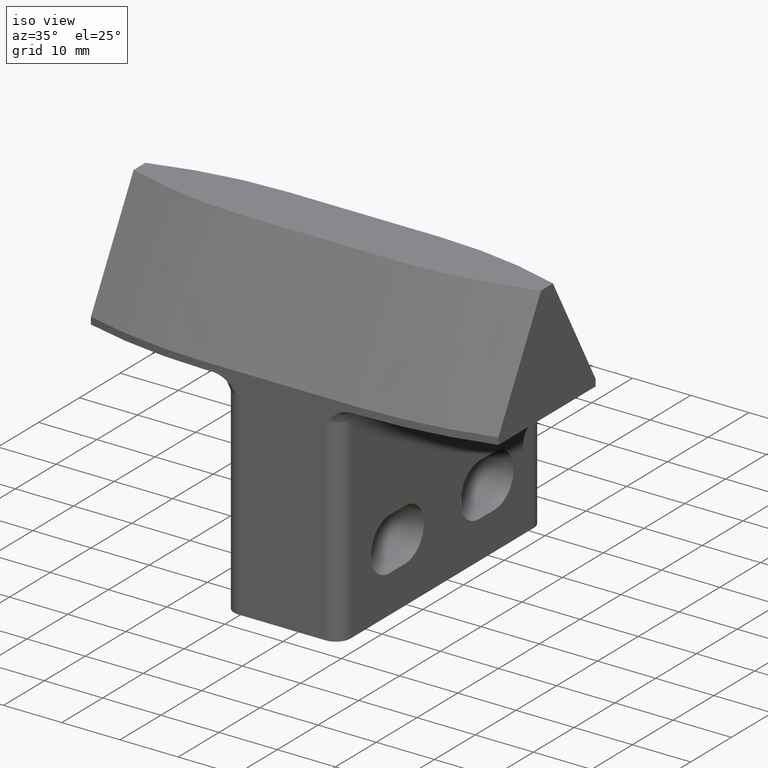
[diagram: clean part render]
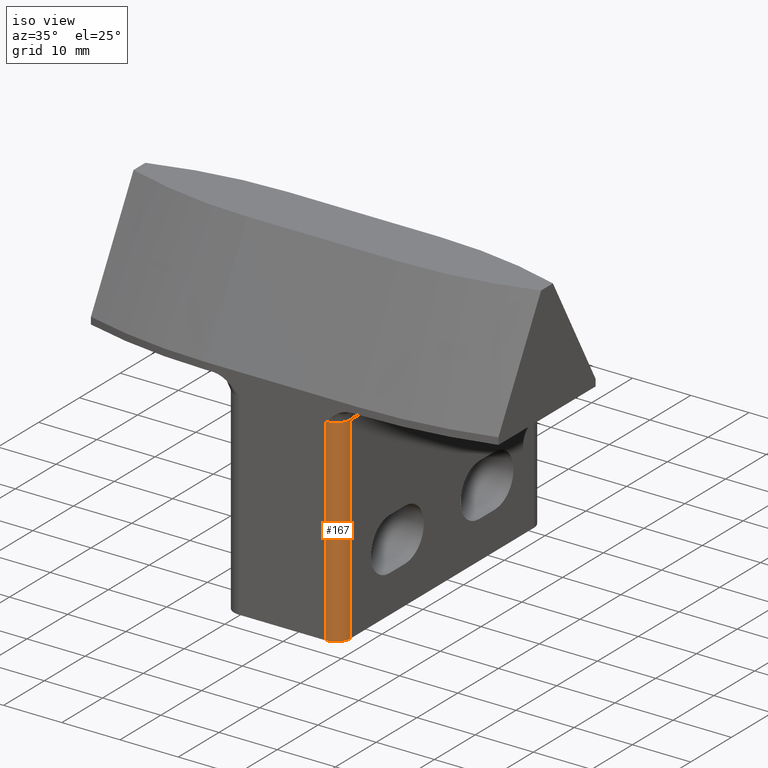
[diagram: same view with one face highlighted and labeled with its STEP entity id]
A machine part, iso view. The second image highlights one B-rep face of the part: STEP entity #167.
In plain terms, the highlighted cylindrical surface (edge-blend (fillet) strip) has radius 2.5 mm, axis along (0, 0, -1).
Its self-contained STEP definition (entity closure, byte-faithful):
#72 = DIRECTION ( 'NONE',  ( -1.000000000000000000, 0.0000000000000000000, -9.769962616700501100E-013 ) ) ;
#73 = CARTESIAN_POINT ( 'NONE',  ( 276.6349525315150700, -229.0043693264227600, 72.10903880632146500 ) ) ;
#84 = AXIS2_PLACEMENT_3D ( 'NONE', #529, #853, #195 ) ;
#151 = FACE_OUTER_BOUND ( 'NONE', #297, .T. ) ;
#167 = ADVANCED_FACE ( 'NONE', ( #151 ), #1260, .T. ) ;
#195 = DIRECTION ( 'NONE',  ( -1.000000000000000000, 0.0000000000000000000, -9.797718192316128000E-013 ) ) ;
#206 = ORIENTED_EDGE ( 'NONE', *, *, #482, .T. ) ;
#217 = LINE ( 'NONE', #1095, #477 ) ;
#234 = VERTEX_POINT ( 'NONE', #881 ) ;
#236 = VECTOR ( 'NONE', #745, 1000.000000000000000 ) ;
#246 = DIRECTION ( 'NONE',  ( 9.788297652662228800E-013, 2.213116394335770300E-015, -1.000000000000000000 ) ) ;
#297 = EDGE_LOOP ( 'NONE', ( #490, #848, #206, #974 ) ) ;
#316 = EDGE_CURVE ( 'NONE', #1387, #1202, #217, .T. ) ;
#335 = AXIS2_PLACEMENT_3D ( 'NONE', #911, #246, #359 ) ;
#359 = DIRECTION ( 'NONE',  ( -1.000000000000000000, 0.0000000000000000000, -9.769962616700501100E-013 ) ) ;
#390 = VERTEX_POINT ( 'NONE', #1213 ) ;
#394 = DIRECTION ( 'NONE',  ( 9.788297652662228800E-013, 2.213116394335770300E-015, -1.000000000000000000 ) ) ;
#477 = VECTOR ( 'NONE', #1215, 1000.000000000000000 ) ;
#482 = EDGE_CURVE ( 'NONE', #1202, #234, #968, .T. ) ;
#490 = ORIENTED_EDGE ( 'NONE', *, *, #1240, .T. ) ;
#501 = CARTESIAN_POINT ( 'NONE',  ( 276.6349525314619800, -226.5043693264350400, 126.2557864523229900 ) ) ;
#529 = CARTESIAN_POINT ( 'NONE',  ( 276.6349525315482700, -226.5043693264348400, 38.10903880631750000 ) ) ;
#745 = DIRECTION ( 'NONE',  ( -5.068494262051460900E-013, 0.0000000000000000000, -1.000000000000000000 ) ) ;
#768 = EDGE_CURVE ( 'NONE', #390, #234, #1154, .T. ) ;
#848 = ORIENTED_EDGE ( 'NONE', *, *, #316, .T. ) ;
#853 = DIRECTION ( 'NONE',  ( -9.788297652662228800E-013, -2.213116394335770300E-015, 1.000000000000000000 ) ) ;
#881 = CARTESIAN_POINT ( 'NONE',  ( 279.1349525314513500, -226.5043693264349300, 38.10903880631872900 ) ) ;
#911 = CARTESIAN_POINT ( 'NONE',  ( 276.6349525315150100, -226.5043693264349300, 72.10903880631775600 ) ) ;
#958 = CARTESIAN_POINT ( 'NONE',  ( 276.6349525315482700, -229.0043693264351000, 38.10903880631750000 ) ) ;
#962 = CARTESIAN_POINT ( 'NONE',  ( 279.1349525314609500, -226.5043693264350400, 57.10903880629710000 ) ) ;
#968 = CIRCLE ( 'NONE', #84, 2.500000000000224300 ) ;
#974 = ORIENTED_EDGE ( 'NONE', *, *, #768, .F. ) ;
#981 = AXIS2_PLACEMENT_3D ( 'NONE', #501, #394, #72 ) ;
#982 = CIRCLE ( 'NONE', #335, 2.500000000000224300 ) ;
#1095 = CARTESIAN_POINT ( 'NONE',  ( 276.6349525314620300, -229.0043693264352700, 126.2557864523229900 ) ) ;
#1154 = LINE ( 'NONE', #962, #236 ) ;
#1202 = VERTEX_POINT ( 'NONE', #958 ) ;
#1213 = CARTESIAN_POINT ( 'NONE',  ( 279.1349525314917600, -226.5043693264350400, 72.10903880632217500 ) ) ;
#1215 = DIRECTION ( 'NONE',  ( 9.788297652662228800E-013, 2.213116394335770300E-015, -1.000000000000000000 ) ) ;
#1240 = EDGE_CURVE ( 'NONE', #390, #1387, #982, .T. ) ;
#1260 = CYLINDRICAL_SURFACE ( 'NONE', #981, 2.500000000000224300 ) ;
#1387 = VERTEX_POINT ( 'NONE', #73 ) ;